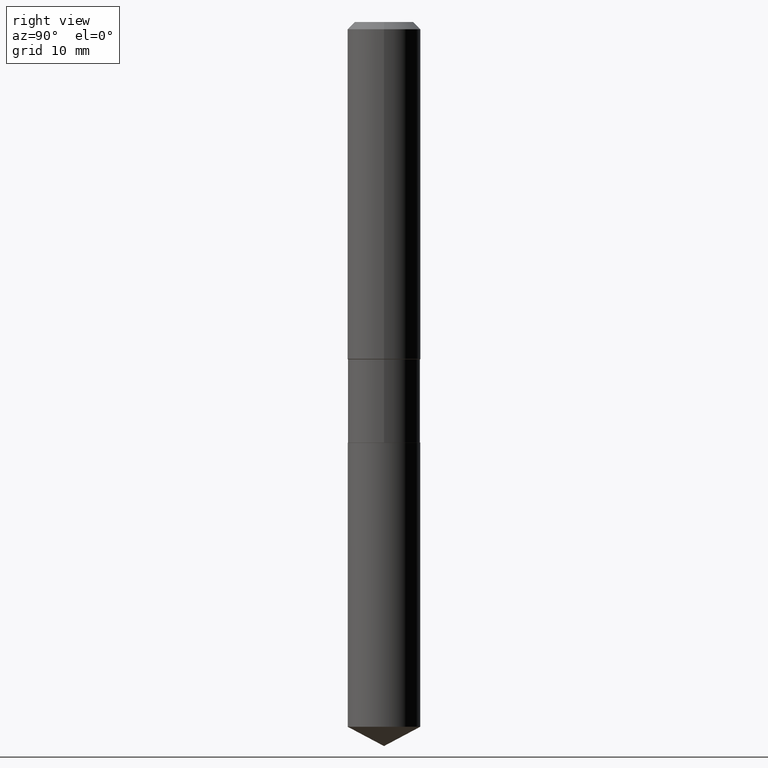
[diagram: clean part render]
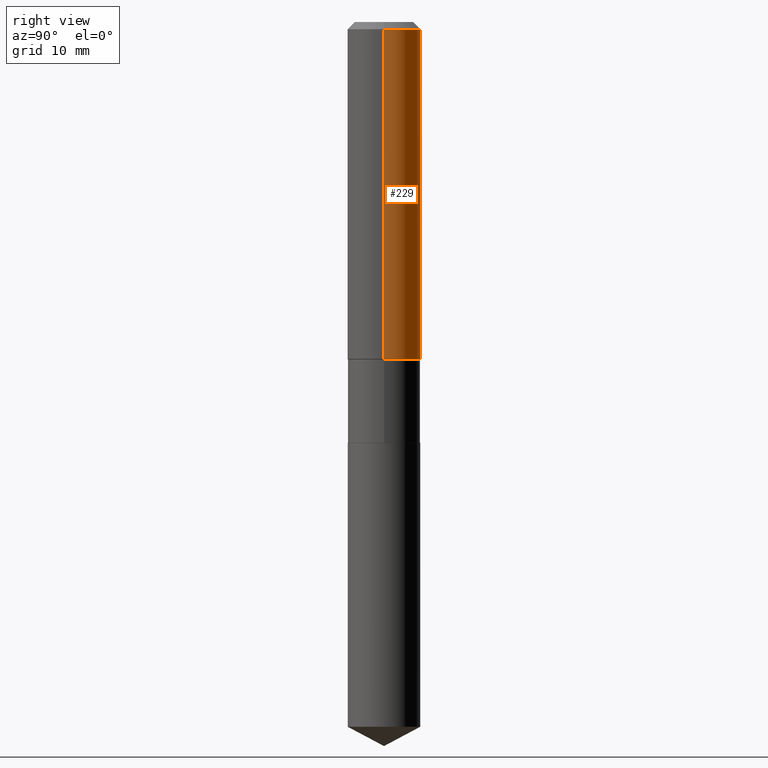
[diagram: same view with one face highlighted and labeled with its STEP entity id]
A machine part, right view. The second image highlights one B-rep face of the part: STEP entity #229.
In plain terms, the highlighted cylindrical surface (partial cylindrical patch) has radius 4.0005 mm, axis along (-0, 0, 1).
Its self-contained STEP definition (entity closure, byte-faithful):
#5 = DIRECTION ( 'NONE',  ( 1.000000000000000000, -6.982962677686267499E-15, 0.000000000000000000 ) ) ;
#11 = CARTESIAN_POINT ( 'NONE',  ( 0.000000000000000000, 0.000000000000000000, 0.000000000000000000 ) ) ;
#23 = DIRECTION ( 'NONE',  ( -2.445468806185136597E-29, 3.491481338843145583E-15, 1.000000000000000000 ) ) ;
#52 = VERTEX_POINT ( 'NONE', #144 ) ;
#69 = CARTESIAN_POINT ( 'NONE',  ( 0.1575000000000000011, -1.209798283909146741E-15, -0.03150000000000019451 ) ) ;
#76 = CARTESIAN_POINT ( 'NONE',  ( -0.1575000000000000844, 1.119104808822158392E-15, -7.747322767151481189E-30 ) ) ;
#86 = VERTEX_POINT ( 'NONE', #69 ) ;
#100 = EDGE_CURVE ( 'NONE', #467, #52, #219, .T. ) ;
#101 = CIRCLE ( 'NONE', #119, 0.1575000000000001676 ) ;
#109 = EDGE_LOOP ( 'NONE', ( #136, #203, #113, #390 ) ) ;
#112 = EDGE_CURVE ( 'NONE', #86, #52, #285, .T. ) ;
#113 = ORIENTED_EDGE ( 'NONE', *, *, #112, .F. ) ;
#115 = DIRECTION ( 'NONE',  ( -2.445468806185136877E-29, 3.491481338843145188E-15, 1.000000000000000000 ) ) ;
#119 = AXIS2_PLACEMENT_3D ( 'NONE', #123, #228, #5 ) ;
#123 = CARTESIAN_POINT ( 'NONE',  ( 3.539327003191747834E-29, -5.053220941707684601E-15, -1.447299999999999809 ) ) ;
#136 = ORIENTED_EDGE ( 'NONE', *, *, #342, .T. ) ;
#144 = CARTESIAN_POINT ( 'NONE',  ( -0.1575000000000000011, -1.462496493118463440E-15, -0.03150000000000019451 ) ) ;
#146 = AXIS2_PLACEMENT_3D ( 'NONE', #11, #426, #312 ) ;
#174 = DIRECTION ( 'NONE',  ( 1.000000000000000000, -6.982962677686265922E-15, 0.000000000000000000 ) ) ;
#198 = VERTEX_POINT ( 'NONE', #234 ) ;
#203 = ORIENTED_EDGE ( 'NONE', *, *, #100, .T. ) ;
#219 = LINE ( 'NONE', #76, #291 ) ;
#228 = DIRECTION ( 'NONE',  ( -2.445468806185136597E-29, 3.491481338843145583E-15, 1.000000000000000000 ) ) ;
#229 = ADVANCED_FACE ( 'NONE', ( #347 ), #232, .T. ) ;
#232 = CYLINDRICAL_SURFACE ( 'NONE', #146, 0.1575000000000000844 ) ;
#234 = CARTESIAN_POINT ( 'NONE',  ( 0.1575000000000001676, -6.153037563443272081E-15, -1.447299999999999809 ) ) ;
#235 = DIRECTION ( 'NONE',  ( -2.445468806185136877E-29, 3.491481338843145188E-15, 1.000000000000000000 ) ) ;
#257 = CARTESIAN_POINT ( 'NONE',  ( 7.703226739483226971E-31, -1.099816621735597538E-16, -0.03150000000000019451 ) ) ;
#268 = VECTOR ( 'NONE', #235, 39.37007874015748143 ) ;
#282 = CARTESIAN_POINT ( 'NONE',  ( -0.1575000000000001676, -3.934116132885524631E-15, -1.447299999999999809 ) ) ;
#285 = CIRCLE ( 'NONE', #331, 0.1575000000000000011 ) ;
#291 = VECTOR ( 'NONE', #115, 39.37007874015748143 ) ;
#312 = DIRECTION ( 'NONE',  ( 1.000000000000000000, -6.982962677686267499E-15, 4.876176775795936353E-29 ) ) ;
#331 = AXIS2_PLACEMENT_3D ( 'NONE', #257, #23, #174 ) ;
#342 = EDGE_CURVE ( 'NONE', #198, #467, #101, .T. ) ;
#347 = FACE_OUTER_BOUND ( 'NONE', #109, .T. ) ;
#370 = EDGE_CURVE ( 'NONE', #198, #86, #441, .T. ) ;
#390 = ORIENTED_EDGE ( 'NONE', *, *, #370, .F. ) ;
#426 = DIRECTION ( 'NONE',  ( -2.445468806185136597E-29, 3.491481338843145583E-15, 1.000000000000000000 ) ) ;
#434 = CARTESIAN_POINT ( 'NONE',  ( 0.1575000000000000844, -1.099816621735587677E-15, 7.679978421878603638E-30 ) ) ;
#441 = LINE ( 'NONE', #434, #268 ) ;
#467 = VERTEX_POINT ( 'NONE', #282 ) ;